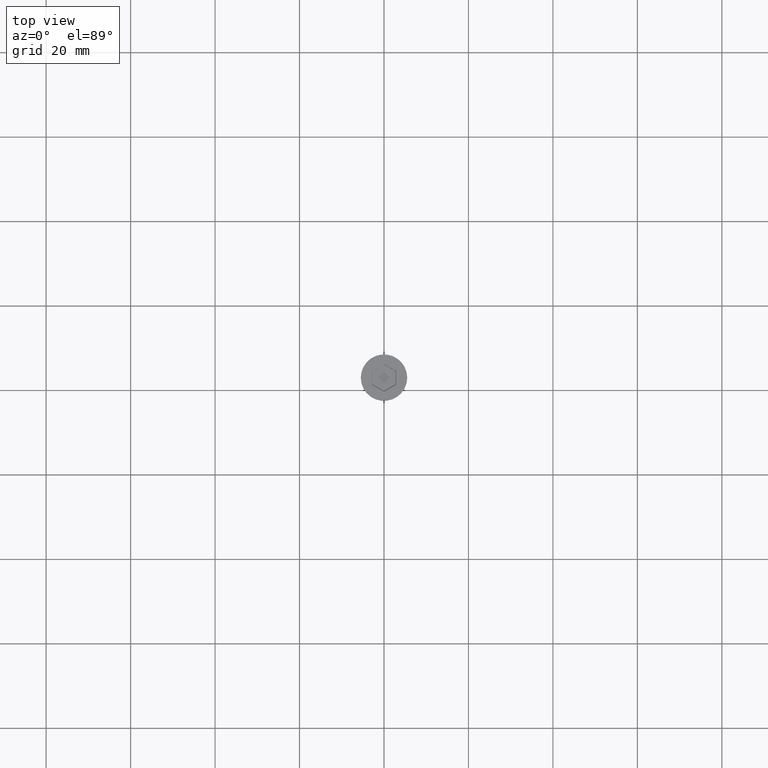
[diagram: clean part render]
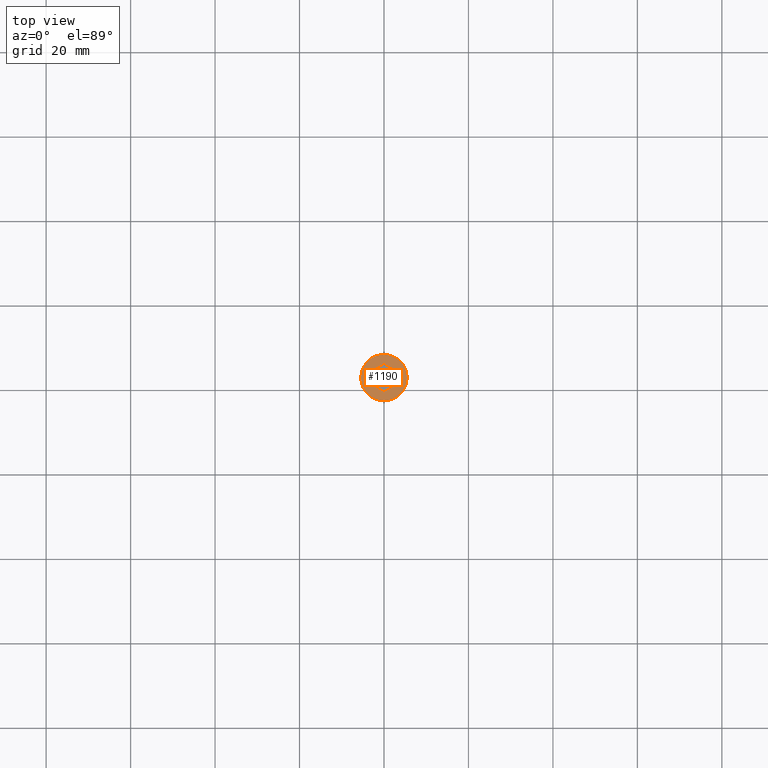
[diagram: same view with one face highlighted and labeled with its STEP entity id]
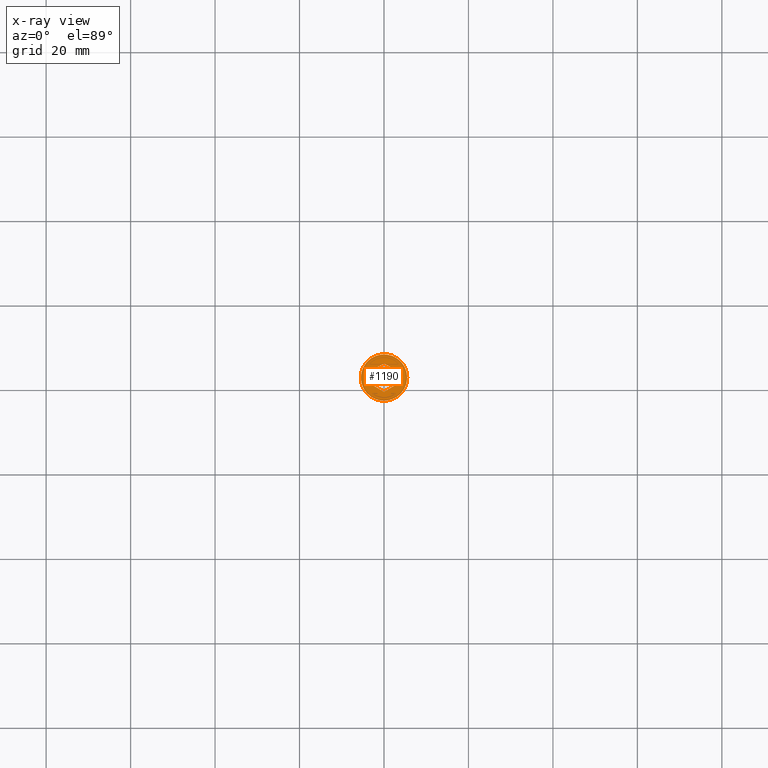
[diagram: x-ray of the same camera — body ghosted, the highlighted face saturated]
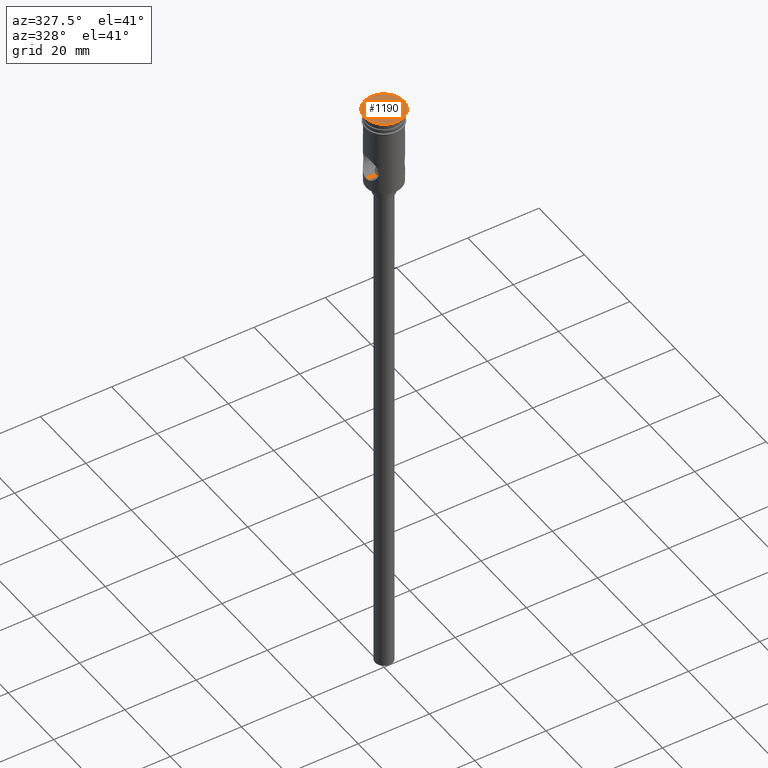
[diagram: same view with one face highlighted and labeled with its STEP entity id]
A machine part, top view. The second image highlights one B-rep face of the part: STEP entity #1190.
The next image is the same camera in x-ray: the body ghosted, the highlighted face saturated — about 0% of this face is hidden behind the body in this view.
A second angle (auxiliary view) of the same face is appended — the face is thin or edge-on in the first view.
In plain terms, the highlighted planar face has unit normal (0, -0, 1).
Its self-contained STEP definition (entity closure, byte-faithful):
#9 = DIRECTION ( 'NONE',  ( 1.000000000000000000, 0.000000000000000000, 0.000000000000000000 ) ) ;
#80 = EDGE_LOOP ( 'NONE', ( #1057, #1334, #339, #1256, #1082, #768 ) ) ;
#97 = CIRCLE ( 'NONE', #282, 5.500000000000000000 ) ;
#99 = EDGE_CURVE ( 'NONE', #1407, #995, #119, .T. ) ;
#116 = FACE_BOUND ( 'NONE', #80, .T. ) ;
#119 = LINE ( 'NONE', #1044, #1448 ) ;
#175 = DIRECTION ( 'NONE',  ( 1.000000000000000000, 0.000000000000000000, 0.000000000000000000 ) ) ;
#176 = VERTEX_POINT ( 'NONE', #770 ) ;
#195 = CARTESIAN_POINT ( 'NONE',  ( -2.899999999999994138, 1.558845726811988852, 0.000000000000000000 ) ) ;
#198 = EDGE_CURVE ( 'NONE', #1261, #548, #1080, .T. ) ;
#201 = VERTEX_POINT ( 'NONE', #1206 ) ;
#220 = AXIS2_PLACEMENT_3D ( 'NONE', #723, #372, #175 ) ;
#227 = CARTESIAN_POINT ( 'NONE',  ( 5.500000000000000000, 0.000000000000000000, 0.000000000000000000 ) ) ;
#254 = CARTESIAN_POINT ( 'NONE',  ( -0.09999999999999764633, 3.290896534380861382, 0.000000000000000000 ) ) ;
#269 = EDGE_LOOP ( 'NONE', ( #1147, #1076 ) ) ;
#282 = AXIS2_PLACEMENT_3D ( 'NONE', #457, #1450, #1021 ) ;
#317 = CARTESIAN_POINT ( 'NONE',  ( 2.899999999999992362, -1.558845726811989296, 0.000000000000000000 ) ) ;
#339 = ORIENTED_EDGE ( 'NONE', *, *, #1181, .T. ) ;
#342 = EDGE_CURVE ( 'NONE', #1205, #1059, #97, .T. ) ;
#359 = CARTESIAN_POINT ( 'NONE',  ( 0.000000000000000000, 0.000000000000000000, 0.000000000000000000 ) ) ;
#364 = DIRECTION ( 'NONE',  ( 0.000000000000000000, -0.000000000000000000, 1.000000000000000000 ) ) ;
#372 = DIRECTION ( 'NONE',  ( -0.000000000000000000, -0.000000000000000000, 1.000000000000000000 ) ) ;
#383 = LINE ( 'NONE', #737, #862 ) ;
#446 = LINE ( 'NONE', #317, #1219 ) ;
#457 = CARTESIAN_POINT ( 'NONE',  ( 0.000000000000000000, 0.000000000000000000, 0.000000000000000000 ) ) ;
#473 = CIRCLE ( 'NONE', #220, 5.500000000000000000 ) ;
#493 = VECTOR ( 'NONE', #977, 1000.000000000000114 ) ;
#518 = VECTOR ( 'NONE', #1137, 1000.000000000000000 ) ;
#548 = VERTEX_POINT ( 'NONE', #1341 ) ;
#565 = EDGE_CURVE ( 'NONE', #201, #176, #383, .T. ) ;
#685 = DIRECTION ( 'NONE',  ( -0.8660254037844387076, -0.4999999999999998890, 0.000000000000000000 ) ) ;
#723 = CARTESIAN_POINT ( 'NONE',  ( 0.000000000000000000, 0.000000000000000000, 0.000000000000000000 ) ) ;
#737 = CARTESIAN_POINT ( 'NONE',  ( 2.799999999999996270, 1.732050807568872086, 0.000000000000000000 ) ) ;
#768 = ORIENTED_EDGE ( 'NONE', *, *, #99, .T. ) ;
#770 = CARTESIAN_POINT ( 'NONE',  ( 2.899999999999992806, 1.674315780649911378, 0.000000000000000000 ) ) ;
#776 = AXIS2_PLACEMENT_3D ( 'NONE', #359, #364, #9 ) ;
#822 = EDGE_CURVE ( 'NONE', #176, #1407, #446, .T. ) ;
#862 = VECTOR ( 'NONE', #1286, 1000.000000000000000 ) ;
#865 = DIRECTION ( 'NONE',  ( 0.000000000000000000, 1.000000000000000000, 0.000000000000000000 ) ) ;
#867 = CARTESIAN_POINT ( 'NONE',  ( -4.552601062339046804E-16, -3.348631561299821868, 0.000000000000000000 ) ) ;
#889 = EDGE_CURVE ( 'NONE', #1059, #1205, #473, .T. ) ;
#977 = DIRECTION ( 'NONE',  ( -0.8660254037844385966, 0.5000000000000001110, 0.000000000000000000 ) ) ;
#995 = VERTEX_POINT ( 'NONE', #867 ) ;
#999 = CARTESIAN_POINT ( 'NONE',  ( -2.799999999999997158, -1.732050807568871864, 0.000000000000000000 ) ) ;
#1021 = DIRECTION ( 'NONE',  ( 1.000000000000000000, 0.000000000000000000, 0.000000000000000000 ) ) ;
#1044 = CARTESIAN_POINT ( 'NONE',  ( 0.09999999999999654998, -3.290896534380861382, 0.000000000000000000 ) ) ;
#1052 = VECTOR ( 'NONE', #865, 1000.000000000000000 ) ;
#1057 = ORIENTED_EDGE ( 'NONE', *, *, #1415, .T. ) ;
#1059 = VERTEX_POINT ( 'NONE', #1329 ) ;
#1076 = ORIENTED_EDGE ( 'NONE', *, *, #889, .T. ) ;
#1080 = LINE ( 'NONE', #195, #1052 ) ;
#1082 = ORIENTED_EDGE ( 'NONE', *, *, #822, .T. ) ;
#1122 = CARTESIAN_POINT ( 'NONE',  ( 2.899999999999992362, -1.674315780649911822, 0.000000000000000000 ) ) ;
#1137 = DIRECTION ( 'NONE',  ( 0.8660254037844387076, 0.4999999999999998890, 0.000000000000000000 ) ) ;
#1147 = ORIENTED_EDGE ( 'NONE', *, *, #342, .T. ) ;
#1163 = PLANE ( 'NONE',  #776 ) ;
#1181 = EDGE_CURVE ( 'NONE', #548, #201, #1268, .T. ) ;
#1190 = ADVANCED_FACE ( 'NONE', ( #116, #1381 ), #1163, .T. ) ;
#1205 = VERTEX_POINT ( 'NONE', #227 ) ;
#1206 = CARTESIAN_POINT ( 'NONE',  ( -9.683804684061200344E-16, 3.348631561299821868, 0.000000000000000000 ) ) ;
#1219 = VECTOR ( 'NONE', #1432, 1000.000000000000000 ) ;
#1256 = ORIENTED_EDGE ( 'NONE', *, *, #565, .T. ) ;
#1261 = VERTEX_POINT ( 'NONE', #1353 ) ;
#1268 = LINE ( 'NONE', #254, #518 ) ;
#1286 = DIRECTION ( 'NONE',  ( 0.8660254037844387076, -0.4999999999999998335, 0.000000000000000000 ) ) ;
#1329 = CARTESIAN_POINT ( 'NONE',  ( -5.500000000000000000, 6.735557395310442023E-16, 0.000000000000000000 ) ) ;
#1334 = ORIENTED_EDGE ( 'NONE', *, *, #198, .T. ) ;
#1341 = CARTESIAN_POINT ( 'NONE',  ( -2.899999999999994138, 1.674315780649911600, 0.000000000000000000 ) ) ;
#1353 = CARTESIAN_POINT ( 'NONE',  ( -2.899999999999994138, -1.674315780649910934, 0.000000000000000000 ) ) ;
#1381 = FACE_OUTER_BOUND ( 'NONE', #269, .T. ) ;
#1407 = VERTEX_POINT ( 'NONE', #1122 ) ;
#1415 = EDGE_CURVE ( 'NONE', #995, #1261, #1435, .T. ) ;
#1432 = DIRECTION ( 'NONE',  ( -1.391032035867740017E-16, -1.000000000000000000, 0.000000000000000000 ) ) ;
#1435 = LINE ( 'NONE', #999, #493 ) ;
#1448 = VECTOR ( 'NONE', #685, 1000.000000000000000 ) ;
#1450 = DIRECTION ( 'NONE',  ( -0.000000000000000000, -0.000000000000000000, 1.000000000000000000 ) ) ;